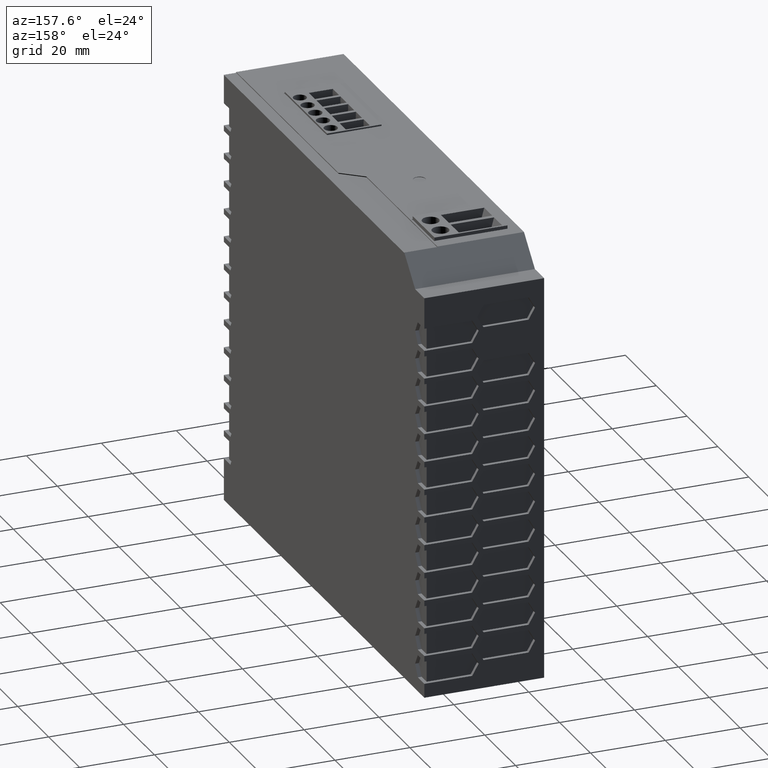
[diagram: clean part render]
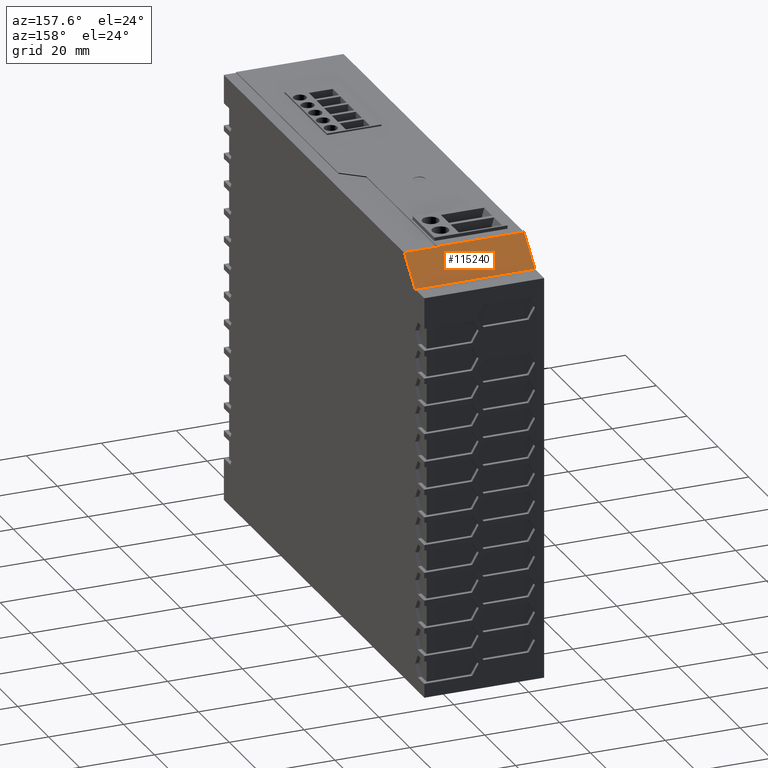
[diagram: same view with one face highlighted and labeled with its STEP entity id]
A machine part, auxiliary view. The second image highlights one B-rep face of the part: STEP entity #115240.
In plain terms, the highlighted planar face has unit normal (-0, -0.7071, -0.7071).
Its self-contained STEP definition (entity closure, byte-faithful):
#200=CARTESIAN_POINT('',(0.,59.0044374186471,-5.52760478079733));
#210=VERTEX_POINT('',#200);
#240=CARTESIAN_POINT('',(0.,-65.,118.47683263785));
#250=DIRECTION('',(0.,-0.707106781186548,0.707106781186548));
#260=VECTOR('',#250,1.);
#270=LINE('',#240,#260);
#280=CARTESIAN_POINT('',(0.,51.9044374186471,1.57239521920263));
#290=VERTEX_POINT('',#280);
#300=EDGE_CURVE('',#210,#290,#270,.T.);
#5750=CARTESIAN_POINT('',(32.,52.0000000000071,1.47683263784265));
#5760=VERTEX_POINT('',#5750);
#5790=CARTESIAN_POINT('',(32.,-65.,118.47683263785));
#5800=DIRECTION('',(0.,-0.707106781186548,0.707106781186548));
#5810=VECTOR('',#5800,1.);
#5820=LINE('',#5790,#5810);
#5830=CARTESIAN_POINT('',(32.,59.0044374186471,-5.52760478079733));
#5840=VERTEX_POINT('',#5830);
#5850=EDGE_CURVE('',#5840,#5760,#5820,.T.);
#17690=CARTESIAN_POINT('',(23.1552841697665,52.0000000000071,
1.47683263784267));
#17700=VERTEX_POINT('',#17690);
#17930=CARTESIAN_POINT('',(23.1552841697665,51.9044374186471,
1.57239521920263));
#17940=VERTEX_POINT('',#17930);
#17970=CARTESIAN_POINT('',(23.1552841697665,-65.,118.47683263785));
#17980=DIRECTION('',(-0.,0.707106781186548,-0.707106781186548));
#17990=VECTOR('',#17980,1.);
#18000=LINE('',#17970,#17990);
#18010=EDGE_CURVE('',#17940,#17700,#18000,.T.);
#35170=CARTESIAN_POINT('',(32.,52.0000000000071,1.47683263784267));
#35180=DIRECTION('',(1.,0.,0.));
#35190=VECTOR('',#35180,1.);
#35200=LINE('',#35170,#35190);
#35210=EDGE_CURVE('',#17700,#5760,#35200,.T.);
#53110=CARTESIAN_POINT('',(32.,59.0044374186471,-5.52760478079733));
#53120=DIRECTION('',(-1.,0.,0.));
#53130=VECTOR('',#53120,1.);
#53140=LINE('',#53110,#53130);
#53150=EDGE_CURVE('',#5840,#210,#53140,.T.);
#85180=CARTESIAN_POINT('',(32.,51.9044374186471,1.57239521920267));
#85190=DIRECTION('',(-1.,0.,0.));
#85200=VECTOR('',#85190,1.);
#85210=LINE('',#85180,#85200);
#85220=EDGE_CURVE('',#17940,#290,#85210,.T.);
#115110=CARTESIAN_POINT('',(32.,59.2973306374601,-5.82049799961033));
#115120=DIRECTION('',(-0.,-0.707106781186548,-0.707106781186548));
#115130=DIRECTION('',(0.,-0.707106781186548,0.707106781186548));
#115140=AXIS2_PLACEMENT_3D('',#115110,#115120,#115130);
#115150=PLANE('',#115140);
#115160=ORIENTED_EDGE('',*,*,#300,.T.);
#115170=ORIENTED_EDGE('',*,*,#53150,.T.);
#115180=ORIENTED_EDGE('',*,*,#5850,.F.);
#115190=ORIENTED_EDGE('',*,*,#35210,.T.);
#115200=ORIENTED_EDGE('',*,*,#18010,.T.);
#115210=ORIENTED_EDGE('',*,*,#85220,.F.);
#115220=EDGE_LOOP('',(#115210,#115200,#115190,#115180,#115170,#115160));
#115230=FACE_OUTER_BOUND('',#115220,.T.);
#115240=ADVANCED_FACE('',(#115230),#115150,.F.);